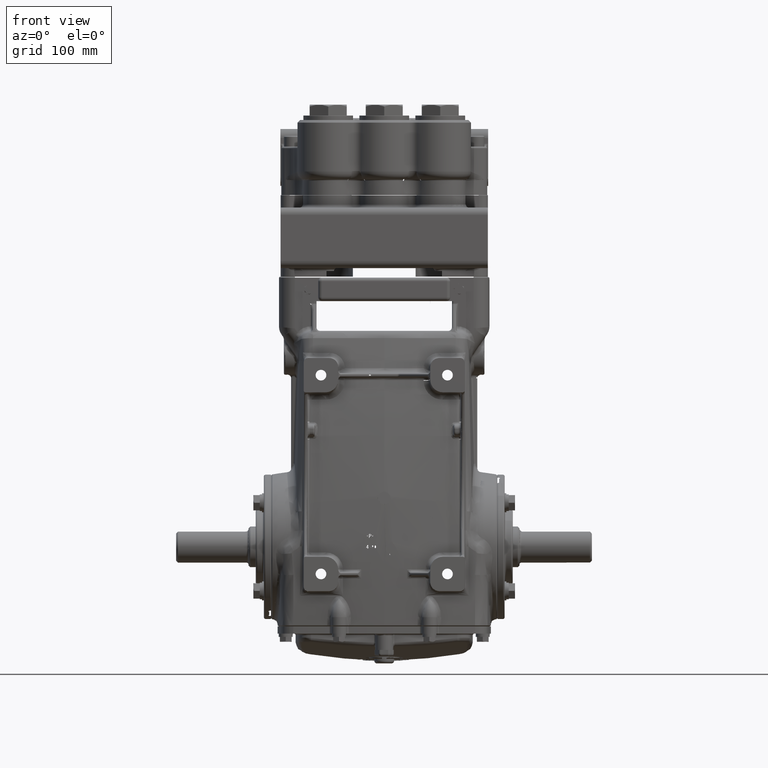
[diagram: clean part render]
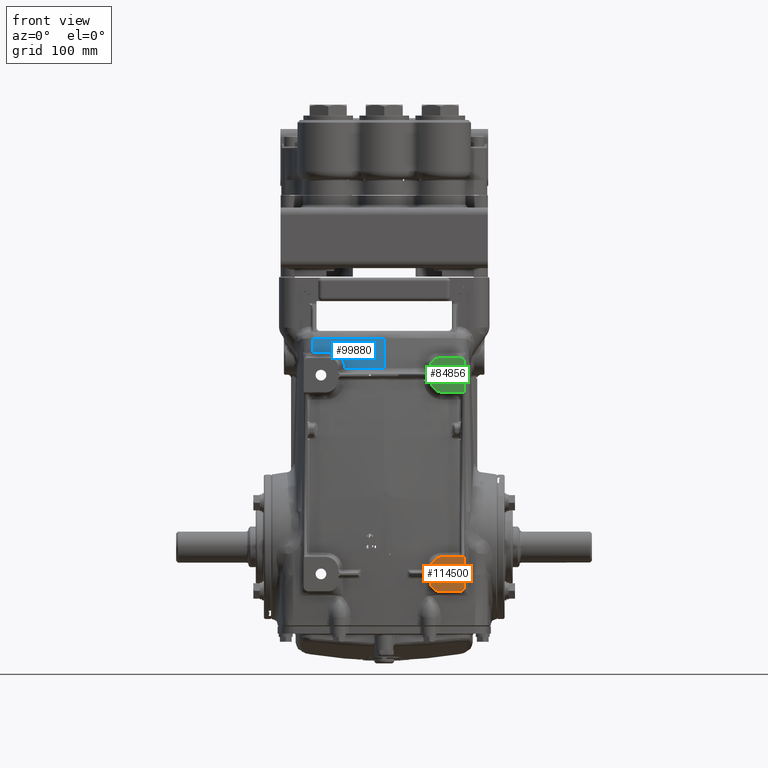
[diagram: same view with three faces highlighted in distinct colors, each labeled with its STEP entity id]
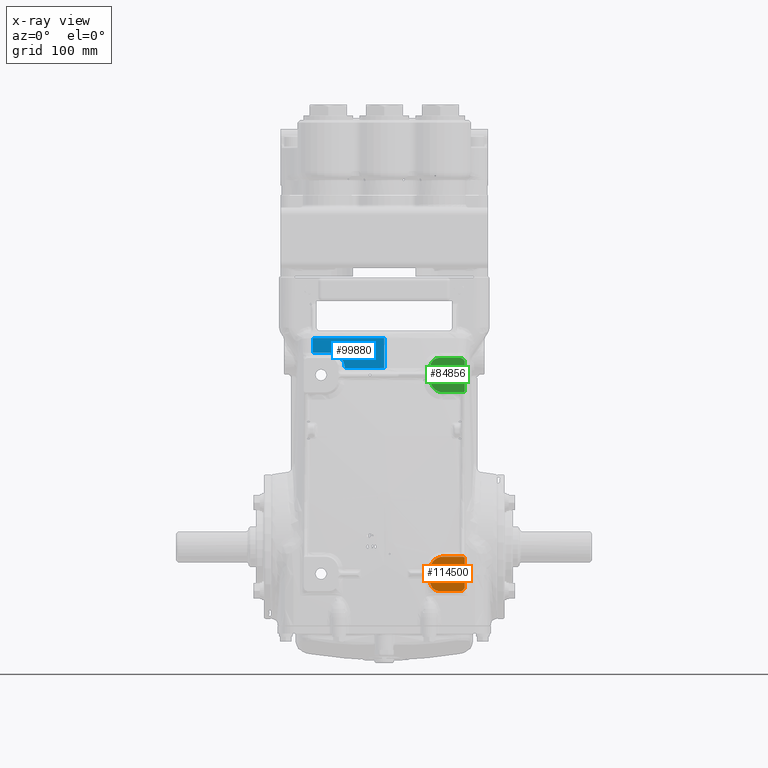
[diagram: x-ray of the same camera — body ghosted, the three highlighted faces saturated]
A machine part, front view with three faces highlighted in distinct colors.
The next image is the same camera in x-ray (body ghosted, the three faces saturated) — at least one of them is partly hidden behind the body in this view.
Their STEP definitions:

[orange] entity #114500 — the highlighted planar face has unit normal (0, -1, -0).
#957 = ORIENTED_EDGE ( 'NONE', *, *, #67158, .T. ) ;
#1473 = CARTESIAN_POINT ( 'NONE',  ( 3.496900669208785839, -4.921259842519685179, -0.4790495044432129257 ) ) ;
#1664 = EDGE_CURVE ( 'NONE', #90042, #77414, #56602, .T. ) ;
#2799 = DIRECTION ( 'NONE',  ( -1.000000000000000000, 0.0000000000000000000, -1.369518533665900065E-16 ) ) ;
#5070 = EDGE_LOOP ( 'NONE', ( #120319, #135981 ) ) ;
#5973 = CARTESIAN_POINT ( 'NONE',  ( 3.425196850393701364, -4.921259842519685179, -0.5118110236220471121 ) ) ;
#9508 = CARTESIAN_POINT ( 'NONE',  ( 2.401574803149606918, -4.921259842519685179, -1.929133858267716883 ) ) ;
#9780 = VERTEX_POINT ( 'NONE', #51452 ) ;
#12530 = DIRECTION ( 'NONE',  ( 1.826024711554533174E-16, 0.0000000000000000000, -1.000000000000000000 ) ) ;
#12553 = ORIENTED_EDGE ( 'NONE', *, *, #1664, .F. ) ;
#12852 = EDGE_CURVE ( 'NONE', #124599, #27910, #17878, .T. ) ;
#13222 = DIRECTION ( 'NONE',  ( 0.0000000000000000000, -1.000000000000000000, -0.0000000000000000000 ) ) ;
#16404 = DIRECTION ( 'NONE',  ( 0.0000000000000000000, 0.0000000000000000000, -1.000000000000000000 ) ) ;
#17878 = CIRCLE ( 'NONE', #95353, 0.1968503937007873017 ) ;
#23643 = FACE_OUTER_BOUND ( 'NONE', #130486, .T. ) ;
#23857 = CARTESIAN_POINT ( 'NONE',  ( 2.755905511811550745, -4.921259842519685179, -0.9481299212598436332 ) ) ;
#24281 = DIRECTION ( 'NONE',  ( 0.0000000000000000000, 0.0000000000000000000, -1.000000000000000000 ) ) ;
#24535 = CARTESIAN_POINT ( 'NONE',  ( 3.503410565396904985, -4.921259842519684291, -0.4980978938802551048 ) ) ;
#24642 = B_SPLINE_CURVE_WITH_KNOTS ( 'NONE', 3,
 ( #34959, #77218, #119467, #24535, #66803, #109055 ),
 .UNSPECIFIED., .F., .F.,
 ( 4, 2, 4 ),
 ( 3.103167691559091397E-17, 0.0003407475794177710010, 0.0006814951588355109939 ),
 .UNSPECIFIED. ) ;
#24662 = EDGE_CURVE ( 'NONE', #78970, #27910, #30423, .T. ) ;
#24960 = VERTEX_POINT ( 'NONE', #38583 ) ;
#26057 = VERTEX_POINT ( 'NONE', #37819 ) ;
#27910 = VERTEX_POINT ( 'NONE', #52524 ) ;
#27927 = CIRCLE ( 'NONE', #105385, 0.2329724409448815925 ) ;
#28263 = EDGE_CURVE ( 'NONE', #124599, #39995, #86280, .T. ) ;
#30423 = LINE ( 'NONE', #72659, #98676 ) ;
#30574 = AXIS2_PLACEMENT_3D ( 'NONE', #5973, #37888, #80163 ) ;
#30741 = VERTEX_POINT ( 'NONE', #67653 ) ;
#33629 = DIRECTION ( 'NONE',  ( 0.0000000000000000000, 0.0000000000000000000, 1.000000000000000000 ) ) ;
#34266 = DIRECTION ( 'NONE',  ( -0.0000000000000000000, 1.000000000000000000, 0.0000000000000000000 ) ) ;
#34959 = CARTESIAN_POINT ( 'NONE',  ( 3.497893122359637008, -4.921259842519685179, -0.4810763468023293021 ) ) ;
#35621 = AXIS2_PLACEMENT_3D ( 'NONE', #69058, #111317, #16404 ) ;
#37766 = AXIS2_PLACEMENT_3D ( 'NONE', #47107, #89359, #131640 ) ;
#37819 = CARTESIAN_POINT ( 'NONE',  ( 2.007874015748031926, -4.921259842519685179, -1.535433070866142113 ) ) ;
#37888 = DIRECTION ( 'NONE',  ( -0.0000000000000000000, 1.000000000000000000, -0.0000000000000000000 ) ) ;
#38583 = CARTESIAN_POINT ( 'NONE',  ( 2.007874015748031482, -4.921259842519685179, -0.9842519685039370358 ) ) ;
#39995 = VERTEX_POINT ( 'NONE', #47489 ) ;
#41544 = VECTOR ( 'NONE', #12530, 39.37007874015748143 ) ;
#42822 = EDGE_CURVE ( 'NONE', #24960, #26057, #65201, .T. ) ;
#43777 = CARTESIAN_POINT ( 'NONE',  ( 3.497893122359637008, -4.921259842519685179, -0.4810763468023293021 ) ) ;
#47107 = CARTESIAN_POINT ( 'NONE',  ( 2.401574803149606918, -4.921259842519685179, -1.535433070866142113 ) ) ;
#47489 = CARTESIAN_POINT ( 'NONE',  ( 3.503937007874016185, -4.921259842519685179, -0.5071693245324403465 ) ) ;
#49221 = CARTESIAN_POINT ( 'NONE',  ( 3.307086614173228689, -4.921259842519685179, -1.732283464566929387 ) ) ;
#49647 = EDGE_CURVE ( 'NONE', #9780, #90042, #90284, .T. ) ;
#50810 = CARTESIAN_POINT ( 'NONE',  ( 3.494823357746523751, -4.921259842519685179, -0.4750392698717546547 ) ) ;
#50826 = ORIENTED_EDGE ( 'NONE', *, *, #28263, .T. ) ;
#51452 = CARTESIAN_POINT ( 'NONE',  ( 3.425196850393701364, -4.921259842519685179, -0.4330708661417321248 ) ) ;
#51511 = ORIENTED_EDGE ( 'NONE', *, *, #12852, .F. ) ;
#52524 = CARTESIAN_POINT ( 'NONE',  ( 3.307086614173228689, -4.921259842519685179, -1.929133858267716661 ) ) ;
#53492 = EDGE_CURVE ( 'NONE', #78970, #26057, #97494, .T. ) ;
#54168 = CARTESIAN_POINT ( 'NONE',  ( 3.494823357746523751, -4.921259842519685179, -0.4750392698717546547 ) ) ;
#54933 = VECTOR ( 'NONE', #33629, 39.37007874015748143 ) ;
#55499 = LINE ( 'NONE', #97766, #119540 ) ;
#55507 = DIRECTION ( 'NONE',  ( -0.0000000000000000000, 0.0000000000000000000, -1.000000000000000000 ) ) ;
#56602 = B_SPLINE_CURVE_WITH_KNOTS ( 'NONE', 3,
 ( #54168, #96438, #1473, #43777 ),
 .UNSPECIFIED., .F., .F.,
 ( 4, 4 ),
 ( 1.734723475976807094E-18, 0.0001719451205968717167 ),
 .UNSPECIFIED. ) ;
#57714 = ORIENTED_EDGE ( 'NONE', *, *, #49647, .F. ) ;
#65201 = LINE ( 'NONE', #107458, #41544 ) ;
#65916 = PLANE ( 'NONE',  #94570 ) ;
#66428 = CARTESIAN_POINT ( 'NONE',  ( 3.503937007874016185, -4.921259842519685179, -1.732283464566929387 ) ) ;
#66803 = CARTESIAN_POINT ( 'NONE',  ( 3.503937007874016185, -4.921259842519685179, -0.5026332440857571582 ) ) ;
#67158 = EDGE_CURVE ( 'NONE', #9780, #76412, #55499, .T. ) ;
#67653 = CARTESIAN_POINT ( 'NONE',  ( 2.755905511811550745, -4.921259842519685179, -1.414074803149606874 ) ) ;
#69058 = CARTESIAN_POINT ( 'NONE',  ( 2.559055118110236560, -4.921259842519685179, -0.9842519685039369248 ) ) ;
#71686 = ORIENTED_EDGE ( 'NONE', *, *, #111359, .F. ) ;
#72488 = ORIENTED_EDGE ( 'NONE', *, *, #24662, .T. ) ;
#72623 = VERTEX_POINT ( 'NONE', #23857 ) ;
#72659 = CARTESIAN_POINT ( 'NONE',  ( 3.503937007874016185, -4.921259842519685179, -1.929133858267716661 ) ) ;
#76412 = VERTEX_POINT ( 'NONE', #135381 ) ;
#76532 = DIRECTION ( 'NONE',  ( 0.0000000000000000000, 0.0000000000000000000, -1.000000000000000000 ) ) ;
#76976 = CARTESIAN_POINT ( 'NONE',  ( 2.755905511811550745, -4.921259842519685179, -1.181102362204725198 ) ) ;
#77006 = CIRCLE ( 'NONE', #94710, 0.2329724409448815925 ) ;
#77218 = CARTESIAN_POINT ( 'NONE',  ( 3.499887958571422431, -4.921259842519416061, -0.4851503109285396076 ) ) ;
#77414 = VERTEX_POINT ( 'NONE', #86198 ) ;
#78970 = VERTEX_POINT ( 'NONE', #9508 ) ;
#80163 = DIRECTION ( 'NONE',  ( 0.0000000000000000000, 0.0000000000000000000, -1.000000000000000000 ) ) ;
#81810 = ORIENTED_EDGE ( 'NONE', *, *, #121786, .F. ) ;
#86198 = CARTESIAN_POINT ( 'NONE',  ( 3.497893122359637008, -4.921259842519685179, -0.4810763468023293021 ) ) ;
#86280 = LINE ( 'NONE', #128538, #54933 ) ;
#89359 = DIRECTION ( 'NONE',  ( -0.0000000000000000000, 1.000000000000000000, -0.0000000000000000000 ) ) ;
#90042 = VERTEX_POINT ( 'NONE', #50810 ) ;
#90284 = CIRCLE ( 'NONE', #30574, 0.07874015748031495954 ) ;
#91497 = DIRECTION ( 'NONE',  ( -0.0000000000000000000, 1.000000000000000000, -0.0000000000000000000 ) ) ;
#94570 = AXIS2_PLACEMENT_3D ( 'NONE', #108161, #13222, #55507 ) ;
#94710 = AXIS2_PLACEMENT_3D ( 'NONE', #76976, #119223, #24281 ) ;
#95329 = CIRCLE ( 'NONE', #35621, 0.5511811023622048555 ) ;
#95353 = AXIS2_PLACEMENT_3D ( 'NONE', #49221, #91497, #133782 ) ;
#96438 = CARTESIAN_POINT ( 'NONE',  ( 3.495878278499195080, -4.921259842519685179, -0.4770367391260433854 ) ) ;
#97494 = CIRCLE ( 'NONE', #37766, 0.3937007874015748810 ) ;
#97766 = CARTESIAN_POINT ( 'NONE',  ( 3.503937007874016185, -4.921259842519685179, -0.4330708661417321248 ) ) ;
#98676 = VECTOR ( 'NONE', #114916, 39.37007874015748143 ) ;
#102251 = EDGE_CURVE ( 'NONE', #30741, #72623, #27927, .T. ) ;
#103012 = ORIENTED_EDGE ( 'NONE', *, *, #42822, .T. ) ;
#104730 = EDGE_CURVE ( 'NONE', #72623, #30741, #77006, .T. ) ;
#105385 = AXIS2_PLACEMENT_3D ( 'NONE', #129168, #34266, #76532 ) ;
#107458 = CARTESIAN_POINT ( 'NONE',  ( 2.007874015748031482, -4.921259842519685179, -0.4330708661417323468 ) ) ;
#108161 = CARTESIAN_POINT ( 'NONE',  ( 3.503937007874016185, -4.921259842519685179, -0.4330708661417321248 ) ) ;
#109055 = CARTESIAN_POINT ( 'NONE',  ( 3.503937007874016185, -4.921259842519685179, -0.5071693245324403465 ) ) ;
#111317 = DIRECTION ( 'NONE',  ( -0.0000000000000000000, 1.000000000000000000, -0.0000000000000000000 ) ) ;
#111359 = EDGE_CURVE ( 'NONE', #77414, #39995, #24642, .T. ) ;
#114500 = ADVANCED_FACE ( 'NONE', ( #118583, #23643 ), #65916, .T. ) ;
#114916 = DIRECTION ( 'NONE',  ( 1.000000000000000000, 0.0000000000000000000, 1.826024711554534160E-16 ) ) ;
#118583 = FACE_BOUND ( 'NONE', #5070, .T. ) ;
#119223 = DIRECTION ( 'NONE',  ( -0.0000000000000000000, 1.000000000000000000, 0.0000000000000000000 ) ) ;
#119467 = CARTESIAN_POINT ( 'NONE',  ( 3.501382793678153860, -4.921259842519686067, -0.4893716595227328714 ) ) ;
#119540 = VECTOR ( 'NONE', #2799, 39.37007874015748143 ) ;
#120319 = ORIENTED_EDGE ( 'NONE', *, *, #102251, .T. ) ;
#121786 = EDGE_CURVE ( 'NONE', #24960, #76412, #95329, .T. ) ;
#124599 = VERTEX_POINT ( 'NONE', #66428 ) ;
#128538 = CARTESIAN_POINT ( 'NONE',  ( 3.503937007874016185, -4.921259842519685179, -0.4330708661417321248 ) ) ;
#129168 = CARTESIAN_POINT ( 'NONE',  ( 2.755905511811550745, -4.921259842519685179, -1.181102362204725198 ) ) ;
#130486 = EDGE_LOOP ( 'NONE', ( #51511, #50826, #71686, #12553, #57714, #957, #81810, #103012, #131512, #72488 ) ) ;
#131512 = ORIENTED_EDGE ( 'NONE', *, *, #53492, .F. ) ;
#131640 = DIRECTION ( 'NONE',  ( 0.0000000000000000000, 0.0000000000000000000, -1.000000000000000000 ) ) ;
#133782 = DIRECTION ( 'NONE',  ( 0.0000000000000000000, 0.0000000000000000000, -1.000000000000000000 ) ) ;
#135381 = CARTESIAN_POINT ( 'NONE',  ( 2.559055118110236560, -4.921259842519685179, -0.4330708661417322913 ) ) ;
#135981 = ORIENTED_EDGE ( 'NONE', *, *, #104730, .T. ) ;

[blue] entity #99880 — the highlighted face is a freeform B-spline surface patch.
#143 = CARTESIAN_POINT ( 'NONE',  ( -2.546897861888073766, -1.984917494112212522, 11.77165354330707103 ) ) ;
#284 = EDGE_CURVE ( 'NONE', #113172, #128885, #71770, .T. ) ;
#824 = CARTESIAN_POINT ( 'NONE',  ( -1.984980094046595811, -3.715035207772793502, -3.618486580175575451 ) ) ;
#1522 = CARTESIAN_POINT ( 'NONE',  ( -1.319367490287321365, -3.750365026217839848, -3.567180029828326049 ) ) ;
#2191 = CARTESIAN_POINT ( 'NONE',  ( -0.7358278385831683588, -3.770187928282998868, -3.515873479481110842 ) ) ;
#2873 = CARTESIAN_POINT ( 'NONE',  ( -0.2967830776188838948, -3.778554773149950918, -3.464566929133870765 ) ) ;
#3565 = CARTESIAN_POINT ( 'NONE',  ( -2.012678123579103383E-16, -3.879607779226448727, 1.666088105590245005 ) ) ;
#4877 = B_SPLINE_CURVE_WITH_KNOTS ( 'NONE', 3,
 ( #130085, #35176, #77430, #119689, #24754, #67019 ),
 .UNSPECIFIED., .F., .F.,
 ( 4, 2, 4 ),
 ( 1.157972947350115611E-16, 0.03946951906550993233, 0.07893903813101973976 ),
 .UNSPECIFIED. ) ;
#5126 = CARTESIAN_POINT ( 'NONE',  ( -2.229146687109527569, -2.725235455612707192, 8.436483552640764216 ) ) ;
#5825 = CARTESIAN_POINT ( 'NONE',  ( -1.805281419105324803, -2.810212604408580450, 8.119421022439990310 ) ) ;
#6726 = B_SPLINE_CURVE_WITH_KNOTS ( 'NONE', 3,
 ( #15569, #57835, #100086, #5126, #47444, #89710, #131984, #37077, #79329, #121579, #26643, #68897, #111154, #16244, #58514, #100772, #5825, #48123, #90380, #132643, #37732, #80010, #122252, #27316, #69571 ),
 .UNSPECIFIED., .F., .F.,
 ( 4, 2, 2, 2, 2, 2, 2, 2, 2, 1, 2, 2, 4 ),
 ( 6.938893903907228378E-18, 0.003339044877611916946, 0.005008567316417892983, 0.006678089755223868586, 0.01001713463283582066, 0.01168665707164179626, 0.01335617951044777187, 0.01669522438805978032, 0.01836474682686582011, 0.02003426926567185989, 0.02170379170447789968, 0.02337331414328393600, 0.02671235902089601211 ),
 .UNSPECIFIED. ) ;
#7131 = CARTESIAN_POINT ( 'NONE',  ( -5.198970772611560598, -3.447554298261426009, 1.666088105590245005 ) ) ;
#7819 = CARTESIAN_POINT ( 'NONE',  ( -4.868081132182981108, -2.932590719273642232, 6.788105265077332362 ) ) ;
#8071 = EDGE_LOOP ( 'NONE', ( #58386, #9096, #75601, #38495, #108648, #49882 ) ) ;
#8509 = CARTESIAN_POINT ( 'NONE',  ( -4.313968799146451261, -1.790118484102914520, 11.77165354330706748 ) ) ;
#9096 = ORIENTED_EDGE ( 'NONE', *, *, #92669, .T. ) ;
#9201 = CARTESIAN_POINT ( 'NONE',  ( -4.245122092175382278, -3.489443528654252891, -3.618486580175574119 ) ) ;
#9876 = CARTESIAN_POINT ( 'NONE',  ( -3.676320872923321215, -3.563139150954628853, -3.567180029828337151 ) ) ;
#10562 = CARTESIAN_POINT ( 'NONE',  ( -2.949326103537944554, -3.641132690136358097, -3.515873479481089525 ) ) ;
#11244 = CARTESIAN_POINT ( 'NONE',  ( -1.985770692835955309, -3.717984613656209802, -3.464566929133851225 ) ) ;
#11509 = CARTESIAN_POINT ( 'NONE',  ( -2.381094078602174591, -2.710867978495036468, 8.453832221844944428 ) ) ;
#11685 = CARTESIAN_POINT ( 'NONE',  ( -2.381094078602174591, -2.710867978495036468, 8.453832221844944428 ) ) ;
#11929 = CARTESIAN_POINT ( 'NONE',  ( -1.362097085040824274, -3.850552444245257000, 1.666088105590242563 ) ) ;
#12620 = CARTESIAN_POINT ( 'NONE',  ( -0.8167816115820991651, -3.300139625805285526, 6.788105265077268413 ) ) ;
#13287 = CARTESIAN_POINT ( 'NONE',  ( -0.3689025879196009550, -2.085018776577810318, 11.77165354330711722 ) ) ;
#13988 = CARTESIAN_POINT ( 'NONE',  ( -0.1142223676823474615, -3.776525152449977885, -3.618486580175580780 ) ) ;
#14683 = CARTESIAN_POINT ( 'NONE',  ( -1.717491946463606256, -2.873698173797204714, 7.787580130769446107 ) ) ;
#15569 = CARTESIAN_POINT ( 'NONE',  ( -2.381094078602174591, -2.710867978495036468, 8.453832221844944428 ) ) ;
#16244 = CARTESIAN_POINT ( 'NONE',  ( -1.879785341906551777, -2.786599487555536658, 8.226226331997818164 ) ) ;
#17546 = FACE_OUTER_BOUND ( 'NONE', #8071, .T. ) ;
#18224 = CARTESIAN_POINT ( 'NONE',  ( -5.106023067944211569, -3.361028495190370613, -3.567180029828339816 ) ) ;
#18925 = CARTESIAN_POINT ( 'NONE',  ( -4.679000667790254475, -3.429291444298804947, -3.515873479481089081 ) ) ;
#19604 = CARTESIAN_POINT ( 'NONE',  ( -4.243963660982920771, -3.492601257485477007, -3.464566929133851669 ) ) ;
#19953 = CARTESIAN_POINT ( 'NONE',  ( -4.867151181417769414E-16, -2.764480798053563060, 8.657853281897740061 ) ) ;
#20289 = CARTESIAN_POINT ( 'NONE',  ( -3.642609699583889693, -3.669091859143849277, 1.666088105590245894 ) ) ;
#20963 = CARTESIAN_POINT ( 'NONE',  ( -2.928843091800468201, -3.174904538743523741, 6.788105265077264860 ) ) ;
#21649 = CARTESIAN_POINT ( 'NONE',  ( -2.064830571771905099, -2.019771155656985950, 11.77165354330714919 ) ) ;
#22087 = CARTESIAN_POINT ( 'NONE',  ( -3.114984796074913742, -2.646561594118289396, 8.453931444787523120 ) ) ;
#22328 = CARTESIAN_POINT ( 'NONE',  ( -1.654884996024220678, -3.733462328889290749, -3.618486580175582557 ) ) ;
#23002 = CARTESIAN_POINT ( 'NONE',  ( -1.030857308887189960, -3.761445529092973139, -3.567180029828311394 ) ) ;
#23708 = CARTESIAN_POINT ( 'NONE',  ( -0.5255356731875537868, -3.774289311186384666, -3.515873479481118835 ) ) ;
#24391 = CARTESIAN_POINT ( 'NONE',  ( -0.1145511254997701872, -3.779527559055117170, -3.464566929133858331 ) ) ;
#24754 = CARTESIAN_POINT ( 'NONE',  ( -2.586744917221051931, -2.577009409423275610, 9.091538388316898534 ) ) ;
#26643 = CARTESIAN_POINT ( 'NONE',  ( -1.975053211250615171, -2.764580880640281624, 8.314972517134361141 ) ) ;
#27316 = CARTESIAN_POINT ( 'NONE',  ( -1.717493775462403782, -2.866097144402355301, 7.831368139716890830 ) ) ;
#28238 = CARTESIAN_POINT ( 'NONE',  ( -5.402293689715766509E-16, -2.679074810044228538, 9.091778328836998213 ) ) ;
#28641 = CARTESIAN_POINT ( 'NONE',  ( -5.097556275581013985, -3.464527348884253399, 1.666088105590245227 ) ) ;
#29330 = CARTESIAN_POINT ( 'NONE',  ( -4.616191265649623787, -2.970628326956800347, 6.788105265077308381 ) ) ;
#30020 = CARTESIAN_POINT ( 'NONE',  ( -4.128120541736747029, -1.815220094267141926, 11.77165354330706748 ) ) ;
#30707 = CARTESIAN_POINT ( 'NONE',  ( -3.976107777697345025, -3.524850135659458594, -3.618486580175578116 ) ) ;
#31401 = CARTESIAN_POINT ( 'NONE',  ( -3.368529403963386848, -3.597357692142189478, -3.567180029828322052 ) ) ;
#32086 = CARTESIAN_POINT ( 'NONE',  ( -2.527195816442180387, -3.678818915764058506, -3.515873479481128161 ) ) ;
#32768 = CARTESIAN_POINT ( 'NONE',  ( -1.655951724608115905, -3.736406295979326497, -3.464566929133859663 ) ) ;
#33441 = CARTESIAN_POINT ( 'NONE',  ( -1.076045302098542100, -3.861960237515295713, 1.666088105590266322 ) ) ;
#34043 = CARTESIAN_POINT ( 'NONE',  ( -3.114984796074913742, -2.646561594118289396, 8.453931444787523120 ) ) ;
#34119 = CARTESIAN_POINT ( 'NONE',  ( -0.5939119186073533729, -3.305025573021251439, 6.788105265077268413 ) ) ;
#34821 = CARTESIAN_POINT ( 'NONE',  ( -0.1474269072420379689, -2.086614173228348523, 11.77165354330708702 ) ) ;
#35176 = CARTESIAN_POINT ( 'NONE',  ( -0.5179728301178145866, -2.679074810044229871, 9.091778328836996437 ) ) ;
#35506 = CARTESIAN_POINT ( 'NONE',  ( -1.794796163052745170E-15, -3.776525152449977885, -3.618486580175580780 ) ) ;
#37077 = CARTESIAN_POINT ( 'NONE',  ( -2.084794139664556401, -2.744608836108300309, 8.385310182721196881 ) ) ;
#37732 = CARTESIAN_POINT ( 'NONE',  ( -1.739755304971318139, -2.842281545850872782, 7.960033192951561531 ) ) ;
#38495 = ORIENTED_EDGE ( 'NONE', *, *, #50388, .T. ) ;
#39050 = CARTESIAN_POINT ( 'NONE',  ( -5.198970772611564151, -3.344471671484953834, -3.618486580175580780 ) ) ;
#39729 = CARTESIAN_POINT ( 'NONE',  ( -4.912396093639706862, -3.392558210691264620, -3.567180029828337151 ) ) ;
#40006 = CARTESIAN_POINT ( 'NONE',  ( 4.012248683779269015E-16, -2.920600716370307826, 7.787511066166949547 ) ) ;
#40399 = CARTESIAN_POINT ( 'NONE',  ( -4.425939253456486533, -3.466301995362111477, -3.515873479481089081 ) ) ;
#41092 = CARTESIAN_POINT ( 'NONE',  ( -3.974983167599075440, -3.527993497208705698, -3.464566929133855222 ) ) ;
#41773 = CARTESIAN_POINT ( 'NONE',  ( -3.343761829193249824, -3.702043953926232422, 1.666088105590247448 ) ) ;
#42458 = CARTESIAN_POINT ( 'NONE',  ( -2.540352331839605515, -3.209458825920017411, 6.788105265077277295 ) ) ;
#43132 = CARTESIAN_POINT ( 'NONE',  ( -1.762624582997618594, -2.037648958642162000, 11.77165354330708169 ) ) ;
#43360 = VERTEX_POINT ( 'NONE', #28238 ) ;
#43823 = CARTESIAN_POINT ( 'NONE',  ( -1.318948572691698740, -3.749382796629336045, -3.618486580175567013 ) ) ;
#44425 = CARTESIAN_POINT ( 'NONE',  ( -3.102199435687712725, -2.525999220438854831, 9.091418719550144800 ) ) ;
#44500 = CARTESIAN_POINT ( 'NONE',  ( -0.7354250834936214565, -3.769197157460041581, -3.567180029828351806 ) ) ;
#45179 = CARTESIAN_POINT ( 'NONE',  ( -0.2965426792512148579, -3.777556046317388727, -3.515873479481112174 ) ) ;
#45503 = CARTESIAN_POINT ( 'NONE',  ( 4.012248683779269015E-16, -2.920600716370307826, 7.787511066166949547 ) ) ;
#45885 = CARTESIAN_POINT ( 'NONE',  ( -1.748382715945128460E-15, -3.779527559055117170, -3.464566929133858331 ) ) ;
#47444 = CARTESIAN_POINT ( 'NONE',  ( -2.207978020088283699, -2.727722115330439401, 8.431119299282199719 ) ) ;
#48123 = CARTESIAN_POINT ( 'NONE',  ( -1.785023455621191690, -2.818220702238185549, 8.081165110137138896 ) ) ;
#49411 = CARTESIAN_POINT ( 'NONE',  ( -5.198970772611564151, -3.347474078090093119, -3.464566929133858331 ) ) ;
#49567 = EDGE_CURVE ( 'NONE', #43360, #113172, #4877, .T. ) ;
#49882 = ORIENTED_EDGE ( 'NONE', *, *, #49567, .T. ) ;
#50116 = CARTESIAN_POINT ( 'NONE',  ( -4.890019231914034314, -3.498206854950665523, 1.666088105590264323 ) ) ;
#50388 = EDGE_CURVE ( 'NONE', #103614, #56304, #130334, .T. ) ;
#50403 = CARTESIAN_POINT ( 'NONE',  ( -1.717491946463606256, -2.873698173797204714, 7.787580130769446107 ) ) ;
#50802 = CARTESIAN_POINT ( 'NONE',  ( -4.351168285628191690, -3.008773466943061692, 6.788105265077287065 ) ) ;
#51481 = CARTESIAN_POINT ( 'NONE',  ( -3.862522157772006803, -1.849175605792622523, 11.77165354330707103 ) ) ;
#52170 = CARTESIAN_POINT ( 'NONE',  ( -3.676651374622727175, -3.562100398913558230, -3.618486580175578116 ) ) ;
#52851 = CARTESIAN_POINT ( 'NONE',  ( -2.949428009068976841, -3.640122913586610220, -3.567180029828330490 ) ) ;
#53526 = CARTESIAN_POINT ( 'NONE',  ( -1.985507159906168884, -3.717001478361737554, -3.515873479481092634 ) ) ;
#54210 = CARTESIAN_POINT ( 'NONE',  ( -1.320205325478566172, -3.752329485394848341, -3.464566929133844564 ) ) ;
#54889 = CARTESIAN_POINT ( 'NONE',  ( -0.7765061026274077127, -3.870255781401681805, 1.666088105590224577 ) ) ;
#55576 = CARTESIAN_POINT ( 'NONE',  ( -0.3448627511526962119, -3.309106901770244136, 6.788105265077311934 ) ) ;
#56262 = CARTESIAN_POINT ( 'NONE',  ( 5.785732909357574272E-15, -2.086614173228348523, 11.77165354330708702 ) ) ;
#56304 = VERTEX_POINT ( 'NONE', #45503 ) ;
#57264 = EDGE_CURVE ( 'NONE', #43360, #56304, #120579, .T. ) ;
#57835 = CARTESIAN_POINT ( 'NONE',  ( -2.336757383248817099, -2.714229300115074572, 8.453827090526871757 ) ) ;
#58386 = ORIENTED_EDGE ( 'NONE', *, *, #284, .T. ) ;
#58514 = CARTESIAN_POINT ( 'NONE',  ( -1.852523140015733816, -2.794281602054802693, 8.192715890282688207 ) ) ;
#59823 = CARTESIAN_POINT ( 'NONE',  ( -5.198970772611549940, -1.654560692263328470, 11.77165354330708702 ) ) ;
#60503 = CARTESIAN_POINT ( 'NONE',  ( -5.106106075712477654, -3.360013800546312712, -3.618486580175580780 ) ) ;
#61207 = CARTESIAN_POINT ( 'NONE',  ( -4.679313152378019147, -3.428244030763729633, -3.567180029828330046 ) ) ;
#61881 = CARTESIAN_POINT ( 'NONE',  ( -4.244349804713741570, -3.491548681208402449, -3.515873479481092634 ) ) ;
#62240 = CARTESIAN_POINT ( 'NONE',  ( -4.403802846105602926E-16, -2.844992522789814515, 8.223069724026359495 ) ) ;
#62567 = CARTESIAN_POINT ( 'NONE',  ( -3.675659869524509293, -3.565216655036770099, -3.464566929133855222 ) ) ;
#63248 = CARTESIAN_POINT ( 'NONE',  ( -2.939033644903691123, -3.743120121660875821, 1.666088105590233681 ) ) ;
#63920 = CARTESIAN_POINT ( 'NONE',  ( -2.038477278793255909, -3.245418434658447815, 6.788105265077341244 ) ) ;
#64362 = CARTESIAN_POINT ( 'NONE',  ( -2.870612155628077033, -2.670863976024473008, 8.453894088200442525 ) ) ;
#64601 = CARTESIAN_POINT ( 'NONE',  ( -1.445880604165337147, -2.053844315605310111, 11.77165354330705149 ) ) ;
#65291 = CARTESIAN_POINT ( 'NONE',  ( -1.030414289345902290, -3.760460090775107567, -3.618486580175552358 ) ) ;
#65980 = CARTESIAN_POINT ( 'NONE',  ( -0.5251954928620821139, -3.773294637058389966, -3.567180029828359356 ) ) ;
#66656 = CARTESIAN_POINT ( 'NONE',  ( -0.1144415395606292740, -3.778526756853404223, -3.515873479481098851 ) ) ;
#67019 = CARTESIAN_POINT ( 'NONE',  ( -3.102199435687712725, -2.525999220438854831, 9.091418719550144800 ) ) ;
#68897 = CARTESIAN_POINT ( 'NONE',  ( -1.941409070860542041, -2.771777961061129503, 8.287041430605134096 ) ) ;
#69571 = CARTESIAN_POINT ( 'NONE',  ( -1.717491946463606256, -2.873698173797204714, 7.787580130769446107 ) ) ;
#70896 = CARTESIAN_POINT ( 'NONE',  ( -5.105857052407678509, -3.363057884478486415, -3.464566929133858331 ) ) ;
#71580 = CARTESIAN_POINT ( 'NONE',  ( -4.647439724426058127, -3.535080211341400602, 1.666088105590255664 ) ) ;
#71770 = B_SPLINE_CURVE_WITH_KNOTS ( 'NONE', 3,
 ( #44425, #86705, #128961, #34043 ),
 .UNSPECIFIED., .F., .F.,
 ( 4, 4 ),
 ( 0.008235883142309732841, 0.02472020310143933919 ),
 .UNSPECIFIED. ) ;
#72272 = CARTESIAN_POINT ( 'NONE',  ( -4.166734914818805535, -3.033923275008306941, 6.788105265077285289 ) ) ;
#72948 = CARTESIAN_POINT ( 'NONE',  ( -3.576509359702647828, -1.883688221017244091, 11.77165354330708347 ) ) ;
#73188 = B_SPLINE_SURFACE_WITH_KNOTS ( 'NONE', 3, 3, ( 
 ( #59823, #102070, #7131, #49411, #91690, #133978, #39050 ),
 ( #81332, #123577, #28641, #70896, #113146, #18224, #60503 ),
 ( #102750, #7819, #50116, #92387, #134670, #39729, #82009 ),
 ( #124265, #29330, #71580, #113837, #18925, #61207, #103463 ),
 ( #8509, #50802, #93065, #135353, #40399, #82678, #124941 ),
 ( #30020, #72272, #114533, #19604, #61881, #104137, #9201 ),
 ( #51481, #93749, #136032, #41092, #83376, #125627, #30707 ),
 ( #72948, #115218, #20289, #62567, #104827, #9876, #52170 ),
 ( #94444, #136725, #41773, #84048, #126310, #31401, #73629 ),
 ( #115898, #20963, #63248, #105509, #10562, #52851, #95119 ),
 ( #143, #42458, #84738, #126992, #32086, #74317, #116588 ),
 ( #21649, #63920, #106178, #11244, #53526, #95802, #824 ),
 ( #43132, #85441, #127677, #32768, #75004, #117253, #22328 ),
 ( #64601, #106853, #11929, #54210, #96486, #1522, #43823 ),
 ( #86102, #128347, #33441, #75699, #117943, #23002, #65291 ),
 ( #107541, #12620, #54889, #97156, #2191, #44500, #86777 ),
 ( #129029, #34119, #76385, #118649, #23708, #65980, #108228 ),
 ( #13287, #55576, #97839, #2873, #45179, #87458, #129728 ),
 ( #34821, #77075, #119331, #24391, #66656, #108912, #13988 ),
 ( #56262, #98523, #3565, #45885, #88149, #130410, #35506 ) ),
 .UNSPECIFIED., .F., .F., .F.,
 ( 4, 1, 1, 1, 1, 1, 1, 1, 1, 1, 1, 1, 1, 1, 1, 1, 1, 4 ),
 ( 4, 3, 4 ),
 ( 0.6184983645669537289, 0.6416159574007272992, 0.6657670389438249403, 0.6733882092255791818, 0.6998562486935847593, 0.7066063624936469445, 0.7326942924917654310, 0.7646558554229355709, 0.7714968629568521585, 0.8200963265278307102, 0.8515849604812834039, 0.8836080370893045766, 0.8894876642136750888, 0.9233597485132005733, 0.9463962413280710972, 0.9559956992374156748, 0.9717342698643535170, 1.000000000000000000 ),
 ( 0.0000000000000000000, 1.000000000000000000, 1.010000000000000009 ),
 .UNSPECIFIED. ) ;
#73629 = CARTESIAN_POINT ( 'NONE',  ( -3.368772223323878379, -3.596331356242345567, -3.618486580175562572 ) ) ;
#74317 = CARTESIAN_POINT ( 'NONE',  ( -2.527130361141695758, -3.677824720997650232, -3.567180029828368681 ) ) ;
#75004 = CARTESIAN_POINT ( 'NONE',  ( -1.655596148413484237, -3.735424973615981248, -3.515873479481100627 ) ) ;
#75601 = ORIENTED_EDGE ( 'NONE', *, *, #80198, .T. ) ;
#75699 = CARTESIAN_POINT ( 'NONE',  ( -1.031743347969765301, -3.763416405728704728, -3.464566929133829909 ) ) ;
#76385 = CARTESIAN_POINT ( 'NONE',  ( -0.5598938860601898604, -3.874751398113876366, 1.666088105590221247 ) ) ;
#77075 = CARTESIAN_POINT ( 'NONE',  ( -0.1364683133279496474, -3.310494761505658357, 6.788105265077297723 ) ) ;
#77430 = CARTESIAN_POINT ( 'NONE',  ( -1.035652791599931177, -2.666268760892444245, 9.091742743691726858 ) ) ;
#79329 = CARTESIAN_POINT ( 'NONE',  ( -2.046650842188887154, -2.750913975050802041, 8.364646803487744364 ) ) ;
#80010 = CARTESIAN_POINT ( 'NONE',  ( -1.734460487809885487, -2.846315913459326552, 7.938824662093010076 ) ) ;
#80198 = EDGE_CURVE ( 'NONE', #116533, #103614, #6726, .T. ) ;
#81332 = CARTESIAN_POINT ( 'NONE',  ( -5.080954721927677831, -1.674312231355024050, 11.77165354330708880 ) ) ;
#81968 = B_SPLINE_CURVE_WITH_KNOTS ( 'NONE', 3,
 ( #22087, #64362, #106621, #11685 ),
 .UNSPECIFIED., .F., .F.,
 ( 4, 4 ),
 ( 8.441528768080324345E-17, 0.01871233081027083231 ),
 .UNSPECIFIED. ) ;
#82009 = CARTESIAN_POINT ( 'NONE',  ( -4.912615474637017421, -3.391522439669113709, -3.618486580175578560 ) ) ;
#82678 = CARTESIAN_POINT ( 'NONE',  ( -4.426311248321303182, -3.465248937106026439, -3.567180029828330046 ) ) ;
#83376 = CARTESIAN_POINT ( 'NONE',  ( -3.975358037631831820, -3.526945710025623626, -3.515873479481096187 ) ) ;
#84048 = CARTESIAN_POINT ( 'NONE',  ( -3.368043765242404231, -3.599410363941876412, -3.464566929133840123 ) ) ;
#84738 = CARTESIAN_POINT ( 'NONE',  ( -2.533806801791136376, -3.779232587171303059, 1.666088105590220581 ) ) ;
#85441 = CARTESIAN_POINT ( 'NONE',  ( -1.727066963534452215, -3.263477530756270450, 6.788105265077293282 ) ) ;
#86102 = CARTESIAN_POINT ( 'NONE',  ( -1.164649210356092590, -2.065893854747715253, 11.77165354330709235 ) ) ;
#86705 = CARTESIAN_POINT ( 'NONE',  ( -3.106461415957063821, -2.567359997039718067, 8.879121883100106416 ) ) ;
#86777 = CARTESIAN_POINT ( 'NONE',  ( -0.7350223284040744431, -3.768206386637084293, -3.618486580175592771 ) ) ;
#87458 = CARTESIAN_POINT ( 'NONE',  ( -0.2963022808835458211, -3.776557319484826980, -3.567180029828353582 ) ) ;
#88149 = CARTESIAN_POINT ( 'NONE',  ( -1.763853864981000631E-15, -3.778526756853404223, -3.515873479481098851 ) ) ;
#89710 = CARTESIAN_POINT ( 'NONE',  ( -2.166042279426309225, -2.733021108248313791, 8.418238033564799494 ) ) ;
#90380 = CARTESIAN_POINT ( 'NONE',  ( -1.766718703396933599, -2.826231851745670820, 8.042107208876069890 ) ) ;
#91690 = CARTESIAN_POINT ( 'NONE',  ( -5.198970772611564151, -3.346473275888379728, -3.515873479481098851 ) ) ;
#92387 = CARTESIAN_POINT ( 'NONE',  ( -4.911957331645086633, -3.394629752735565997, -3.464566929133854334 ) ) ;
#92662 = CARTESIAN_POINT ( 'NONE',  ( -1.145522889151178614, -2.904908632941802793, 7.787536089092605529 ) ) ;
#92669 = EDGE_CURVE ( 'NONE', #128885, #116533, #81968, .T. ) ;
#93065 = CARTESIAN_POINT ( 'NONE',  ( -4.388367772109931231, -3.572660879226690067, 1.666088105590245005 ) ) ;
#93749 = CARTESIAN_POINT ( 'NONE',  ( -3.900009161047697237, -3.068357695933036755, 6.788105265077287065 ) ) ;
#94444 = CARTESIAN_POINT ( 'NONE',  ( -3.295197957094937902, -1.914157087554182235, 11.77165354330705860 ) ) ;
#95115 = CARTESIAN_POINT ( 'NONE',  ( -3.114984796074913742, -2.646561594118289396, 8.453931444787523120 ) ) ;
#95119 = CARTESIAN_POINT ( 'NONE',  ( -2.949529914600009572, -3.639113137036862344, -3.618486580175571454 ) ) ;
#95802 = CARTESIAN_POINT ( 'NONE',  ( -1.985243626976382236, -3.716018343067265750, -3.567180029828334042 ) ) ;
#96486 = CARTESIAN_POINT ( 'NONE',  ( -1.319786407882943768, -3.751347255806344094, -3.515873479481085528 ) ) ;
#96566 = CARTESIAN_POINT ( 'NONE',  ( -3.102199435687712725, -2.525999220438854831, 9.091418719550144800 ) ) ;
#97156 = CARTESIAN_POINT ( 'NONE',  ( -0.7362305936727152611, -3.771178699105955712, -3.464566929133870321 ) ) ;
#97839 = CARTESIAN_POINT ( 'NONE',  ( -0.3208229143857905807, -3.878427456406158935, 1.666088105590246338 ) ) ;
#98523 = CARTESIAN_POINT ( 'NONE',  ( 2.310104062742990326E-15, -3.310494761505658357, 6.788105265077297723 ) ) ;
#99880 = ADVANCED_FACE ( 'NONE', ( #17546 ), #73188, .F. ) ;
#100086 = CARTESIAN_POINT ( 'NONE',  ( -2.293243834376326618, -2.718252907070225266, 8.449406254662800819 ) ) ;
#100772 = CARTESIAN_POINT ( 'NONE',  ( -1.816450438542274615, -2.806189754331757769, 8.138240232370684168 ) ) ;
#102070 = CARTESIAN_POINT ( 'NONE',  ( -5.198970772611556157, -2.878441280540636527, 6.788105265077297723 ) ) ;
#102750 = CARTESIAN_POINT ( 'NONE',  ( -4.846143032451925237, -1.712207013040100589, 11.77165354330713676 ) ) ;
#103463 = CARTESIAN_POINT ( 'NONE',  ( -4.679625636965782931, -3.427196617228654762, -3.618486580175571010 ) ) ;
#103614 = VERTEX_POINT ( 'NONE', #14683 ) ;
#104137 = CARTESIAN_POINT ( 'NONE',  ( -4.244735948444562368, -3.490496104931327892, -3.567180029828333154 ) ) ;
#104486 = CARTESIAN_POINT ( 'NONE',  ( 4.012248683779269015E-16, -2.920600716370307826, 7.787511066166949547 ) ) ;
#104827 = CARTESIAN_POINT ( 'NONE',  ( -3.675990371223915254, -3.564177902995699476, -3.515873479481096187 ) ) ;
#105509 = CARTESIAN_POINT ( 'NONE',  ( -2.949224198006912268, -3.642142466686105973, -3.464566929133849005 ) ) ;
#106178 = CARTESIAN_POINT ( 'NONE',  ( -2.012123985814606275, -3.816298143103390217, 1.666088105590270763 ) ) ;
#106621 = CARTESIAN_POINT ( 'NONE',  ( -2.625969466194566060, -2.692303109643867653, 8.453860562556663183 ) ) ;
#106853 = CARTESIAN_POINT ( 'NONE',  ( -1.403988844603081487, -3.279582165203542843, 6.788105265077278183 ) ) ;
#107541 = CARTESIAN_POINT ( 'NONE',  ( -0.8570571205367896184, -2.075255899652369340, 11.77165354330704972 ) ) ;
#108228 = CARTESIAN_POINT ( 'NONE',  ( -0.5248553125366105521, -3.772299962930395267, -3.618486580175600320 ) ) ;
#108648 = ORIENTED_EDGE ( 'NONE', *, *, #57264, .F. ) ;
#108912 = CARTESIAN_POINT ( 'NONE',  ( -0.1143319536214883747, -3.777525954651690832, -3.567180029828339816 ) ) ;
#111154 = CARTESIAN_POINT ( 'NONE',  ( -1.925407837394540023, -2.775437831165997071, 8.272358029971224269 ) ) ;
#113146 = CARTESIAN_POINT ( 'NONE',  ( -5.105940060175945483, -3.362043189834428514, -3.515873479481098851 ) ) ;
#113172 = VERTEX_POINT ( 'NONE', #96566 ) ;
#113837 = CARTESIAN_POINT ( 'NONE',  ( -4.678688183202489803, -3.430338857833879818, -3.464566929133848117 ) ) ;
#114533 = CARTESIAN_POINT ( 'NONE',  ( -4.205349287900864041, -3.597858885192953160, 1.666088105590243007 ) ) ;
#114877 = CARTESIAN_POINT ( 'NONE',  ( -5.402293689715766509E-16, -2.679074810044228538, 9.091778328836998213 ) ) ;
#115218 = CARTESIAN_POINT ( 'NONE',  ( -3.609559529643269205, -3.103773825358806082, 6.788105265077295059 ) ) ;
#115898 = CARTESIAN_POINT ( 'NONE',  ( -2.918652538697243948, -1.951921385269651754, 11.77165354330703373 ) ) ;
#116533 = VERTEX_POINT ( 'NONE', #11509 ) ;
#116588 = CARTESIAN_POINT ( 'NONE',  ( -2.527064905841210685, -3.676830526231241958, -3.618486580175609646 ) ) ;
#117253 = CARTESIAN_POINT ( 'NONE',  ( -1.655240572218852346, -3.734443651252635998, -3.567180029828341592 ) ) ;
#117943 = CARTESIAN_POINT ( 'NONE',  ( -1.031300328428477631, -3.762430967410839155, -3.515873479481070429 ) ) ;
#118649 = CARTESIAN_POINT ( 'NONE',  ( -0.5258758535130253486, -3.775283985314379809, -3.464566929133877871 ) ) ;
#119331 = CARTESIAN_POINT ( 'NONE',  ( -0.1255097194138603822, -3.879607779226448727, 1.666088105590245005 ) ) ;
#119689 = CARTESIAN_POINT ( 'NONE',  ( -2.070321461261600771, -2.615245076928799595, 9.091627837111053267 ) ) ;
#120579 = B_SPLINE_CURVE_WITH_KNOTS ( 'NONE', 3,
 ( #114877, #19953, #62240, #104486 ),
 .UNSPECIFIED., .F., .F.,
 ( 4, 4 ),
 ( 0.1784130165334954776, 0.2647005798011460298 ),
 .UNSPECIFIED. ) ;
#121579 = CARTESIAN_POINT ( 'NONE',  ( -1.992609798828650858, -2.761064563078308165, 8.328134096344225412 ) ) ;
#122252 = CARTESIAN_POINT ( 'NONE',  ( -1.721754618016186011, -2.858301453540835979, 7.874650734154412746 ) ) ;
#123577 = CARTESIAN_POINT ( 'NONE',  ( -5.089255498754346796, -2.896803575397898456, 6.788105265077298611 ) ) ;
#124265 = CARTESIAN_POINT ( 'NONE',  ( -4.584942806873188559, -1.751408872015680407, 11.77165354330709945 ) ) ;
#124941 = CARTESIAN_POINT ( 'NONE',  ( -4.426683243186120720, -3.464195878849941401, -3.618486580175571010 ) ) ;
#125627 = CARTESIAN_POINT ( 'NONE',  ( -3.975732907664588645, -3.525897922842541110, -3.567180029828337151 ) ) ;
#126310 = CARTESIAN_POINT ( 'NONE',  ( -3.368286584602895761, -3.598384028042032945, -3.515873479481081088 ) ) ;
#126992 = CARTESIAN_POINT ( 'NONE',  ( -2.527261271742665016, -3.679813110530466780, -3.464566929133887196 ) ) ;
#127677 = CARTESIAN_POINT ( 'NONE',  ( -1.691509344071284504, -3.834538532313858994, 1.666088105590241897 ) ) ;
#128347 = CARTESIAN_POINT ( 'NONE',  ( -1.120347256227317789, -3.291310831409765214, 6.788105265077311046 ) ) ;
#128885 = VERTEX_POINT ( 'NONE', #95115 ) ;
#128961 = CARTESIAN_POINT ( 'NONE',  ( -3.110718636491440758, -2.607548077745562409, 8.666623701415694825 ) ) ;
#129029 = CARTESIAN_POINT ( 'NONE',  ( -0.6279299511545158863, -2.080532177372107494, 11.77165354330705327 ) ) ;
#129728 = CARTESIAN_POINT ( 'NONE',  ( -0.2960618825158767842, -3.775558592652264789, -3.618486580175594991 ) ) ;
#130085 = CARTESIAN_POINT ( 'NONE',  ( -5.402293689715766509E-16, -2.679074810044228538, 9.091778328836998213 ) ) ;
#130334 = B_SPLINE_CURVE_WITH_KNOTS ( 'NONE', 3,
 ( #50403, #92662, #134942, #40006 ),
 .UNSPECIFIED., .F., .F.,
 ( 4, 4 ),
 ( 1.179611963664228824E-16, 0.04364608461855452870 ),
 .UNSPECIFIED. ) ;
#130410 = CARTESIAN_POINT ( 'NONE',  ( -1.779325014016872802E-15, -3.777525954651690832, -3.567180029828339816 ) ) ;
#131984 = CARTESIAN_POINT ( 'NONE',  ( -2.145236337075762112, -2.735841424142591460, 8.410690569322378352 ) ) ;
#132643 = CARTESIAN_POINT ( 'NONE',  ( -1.752262106536514707, -2.834253227689659482, 8.001470102143164453 ) ) ;
#133978 = CARTESIAN_POINT ( 'NONE',  ( -5.198970772611564151, -3.345472473686666781, -3.567180029828339816 ) ) ;
#134670 = CARTESIAN_POINT ( 'NONE',  ( -4.912176712642397192, -3.393593981713415086, -3.515873479481095742 ) ) ;
#134942 = CARTESIAN_POINT ( 'NONE',  ( -0.5728204626553266010, -2.920600716370309158, 7.787511066166949547 ) ) ;
#135353 = CARTESIAN_POINT ( 'NONE',  ( -4.425567258591668995, -3.467355053618196958, -3.464566929133848117 ) ) ;
#136032 = CARTESIAN_POINT ( 'NONE',  ( -3.937496164323386783, -3.632772215516931524, 1.666088105590241453 ) ) ;
#136725 = CARTESIAN_POINT ( 'NONE',  ( -3.319479893144094085, -3.135484306018467393, 6.788105265077284400 ) ) ;

[green] entity #84856 — the highlighted planar face has unit normal (0, -1, -0).
#353 = VERTEX_POINT ( 'NONE', #108839 ) ;
#913 = PLANE ( 'NONE',  #96488 ) ;
#2121 = DIRECTION ( 'NONE',  ( 0.0000000000000000000, 0.0000000000000000000, -1.000000000000000000 ) ) ;
#3048 = DIRECTION ( 'NONE',  ( 0.0000000000000000000, 0.0000000000000000000, -1.000000000000000000 ) ) ;
#4245 = CIRCLE ( 'NONE', #81744, 0.2329724409448815925 ) ;
#6483 = EDGE_CURVE ( 'NONE', #88142, #64030, #108450, .T. ) ;
#7752 = VECTOR ( 'NONE', #79028, 39.37007874015748143 ) ;
#8253 = CARTESIAN_POINT ( 'NONE',  ( 2.401574803149605586, -4.921259842519685179, 7.834645669291337100 ) ) ;
#8267 = CARTESIAN_POINT ( 'NONE',  ( 3.495878278499196412, -4.921259842519685179, 6.776249337551246477 ) ) ;
#9942 = VERTEX_POINT ( 'NONE', #110922 ) ;
#11087 = DIRECTION ( 'NONE',  ( 1.000000000000000000, -0.0000000000000000000, -0.0000000000000000000 ) ) ;
#11301 = EDGE_CURVE ( 'NONE', #64030, #110992, #18211, .T. ) ;
#14135 = CARTESIAN_POINT ( 'NONE',  ( 3.499887967183102244, -4.921259842519685179, 6.784362926941000183 ) ) ;
#15252 = LINE ( 'NONE', #57516, #53081 ) ;
#15408 = ORIENTED_EDGE ( 'NONE', *, *, #121840, .T. ) ;
#18125 = CARTESIAN_POINT ( 'NONE',  ( 2.755905511811022723, -4.921259842519685179, 7.713287401574802082 ) ) ;
#18211 = B_SPLINE_CURVE_WITH_KNOTS ( 'NONE', 3,
 ( #60970, #103216, #8267, #50561 ),
 .UNSPECIFIED., .F., .F.,
 ( 4, 4 ),
 ( 0.0003720647506712412259, 0.0005440098712684401277 ),
 .UNSPECIFIED. ) ;
#21247 = EDGE_CURVE ( 'NONE', #61821, #62536, #131668, .T. ) ;
#22699 = VECTOR ( 'NONE', #40778, 39.37007874015748143 ) ;
#22769 = CIRCLE ( 'NONE', #100206, 0.5511811023622051886 ) ;
#24542 = CARTESIAN_POINT ( 'NONE',  ( 3.503937007874016185, -4.921259842519686067, 6.801845801294198246 ) ) ;
#28862 = DIRECTION ( 'NONE',  ( -0.0000000000000000000, 1.000000000000000000, 0.0000000000000000000 ) ) ;
#28954 = AXIS2_PLACEMENT_3D ( 'NONE', #123790, #28862, #71128 ) ;
#29031 = ORIENTED_EDGE ( 'NONE', *, *, #100145, .T. ) ;
#31441 = ORIENTED_EDGE ( 'NONE', *, *, #70973, .F. ) ;
#33742 = EDGE_CURVE ( 'NONE', #110992, #58839, #56006, .T. ) ;
#36630 = CIRCLE ( 'NONE', #114046, 0.3937007874015751585 ) ;
#36770 = CARTESIAN_POINT ( 'NONE',  ( 3.503937007874015297, -4.921259842519685179, 8.228346456692912980 ) ) ;
#38470 = CARTESIAN_POINT ( 'NONE',  ( 2.755905511811022723, -4.921259842519685179, 7.480314960629920407 ) ) ;
#38803 = CARTESIAN_POINT ( 'NONE',  ( 3.425196850393701364, -4.921259842519685179, 6.811023622047246207 ) ) ;
#39546 = EDGE_CURVE ( 'NONE', #353, #62536, #36630, .T. ) ;
#40778 = DIRECTION ( 'NONE',  ( 1.826024711554537611E-16, 0.0000000000000000000, -1.000000000000000000 ) ) ;
#40889 = VECTOR ( 'NONE', #11087, 39.37007874015748143 ) ;
#43218 = CARTESIAN_POINT ( 'NONE',  ( 3.503937007874016185, -4.921259842519685179, -0.4330708661417321248 ) ) ;
#46724 = CARTESIAN_POINT ( 'NONE',  ( 2.007874015748031038, -4.921259842519685179, 7.283464566929136019 ) ) ;
#50545 = DIRECTION ( 'NONE',  ( -0.0000000000000000000, 1.000000000000000000, -0.0000000000000000000 ) ) ;
#50561 = CARTESIAN_POINT ( 'NONE',  ( 3.494823357746523307, -4.921259842519685179, 6.774251868296953027 ) ) ;
#51108 = CARTESIAN_POINT ( 'NONE',  ( 3.494823357746523307, -4.921259842519685179, 6.774251868296953027 ) ) ;
#51366 = EDGE_LOOP ( 'NONE', ( #99407, #53430, #115695, #31441, #29031, #74147, #91766, #119909, #56198, #121979 ) ) ;
#52121 = CARTESIAN_POINT ( 'NONE',  ( 3.503937007874016185, -4.921259842519685179, 6.806381922957635666 ) ) ;
#52888 = VERTEX_POINT ( 'NONE', #46724 ) ;
#53081 = VECTOR ( 'NONE', #99780, 39.37007874015748143 ) ;
#53430 = ORIENTED_EDGE ( 'NONE', *, *, #39546, .F. ) ;
#53614 = FACE_BOUND ( 'NONE', #55172, .T. ) ;
#54317 = VERTEX_POINT ( 'NONE', #18125 ) ;
#54487 = EDGE_CURVE ( 'NONE', #88142, #9942, #15252, .T. ) ;
#54819 = CARTESIAN_POINT ( 'NONE',  ( 2.559055118110235671, -4.921259842519685179, 7.283464566929136019 ) ) ;
#55172 = EDGE_LOOP ( 'NONE', ( #15408, #127306 ) ) ;
#55755 = CARTESIAN_POINT ( 'NONE',  ( 3.307086614173228689, -4.921259842519685179, 8.031496062992124152 ) ) ;
#56006 = CIRCLE ( 'NONE', #133457, 0.07874015748031502893 ) ;
#56198 = ORIENTED_EDGE ( 'NONE', *, *, #54487, .T. ) ;
#56411 = CARTESIAN_POINT ( 'NONE',  ( 3.497893122359642337, -4.921259842519685179, 6.780288945227539443 ) ) ;
#57516 = CARTESIAN_POINT ( 'NONE',  ( 3.503937007874016185, -4.921259842519685179, -0.4330708661417321248 ) ) ;
#58214 = EDGE_CURVE ( 'NONE', #353, #52888, #93437, .T. ) ;
#58839 = VERTEX_POINT ( 'NONE', #104871 ) ;
#59087 = AXIS2_PLACEMENT_3D ( 'NONE', #55755, #98014, #3048 ) ;
#60970 = CARTESIAN_POINT ( 'NONE',  ( 3.497893122359642337, -4.921259842519685179, 6.780288945227539443 ) ) ;
#61821 = VERTEX_POINT ( 'NONE', #77483 ) ;
#62536 = VERTEX_POINT ( 'NONE', #67428 ) ;
#63763 = LINE ( 'NONE', #106025, #40889 ) ;
#64030 = VERTEX_POINT ( 'NONE', #135801 ) ;
#64238 = VERTEX_POINT ( 'NONE', #86899 ) ;
#66810 = CARTESIAN_POINT ( 'NONE',  ( 3.503423845351694599, -4.921259842519686067, 6.797397074645509463 ) ) ;
#67428 = CARTESIAN_POINT ( 'NONE',  ( 2.401574803149605586, -4.921259842519685179, 8.228346456692912980 ) ) ;
#70973 = EDGE_CURVE ( 'NONE', #93884, #52888, #22769, .T. ) ;
#71128 = DIRECTION ( 'NONE',  ( 0.0000000000000000000, 0.0000000000000000000, -1.000000000000000000 ) ) ;
#74147 = ORIENTED_EDGE ( 'NONE', *, *, #33742, .F. ) ;
#77483 = CARTESIAN_POINT ( 'NONE',  ( 3.307086614173228689, -4.921259842519685179, 8.228346456692912980 ) ) ;
#79028 = DIRECTION ( 'NONE',  ( -1.000000000000000000, 0.0000000000000000000, 0.0000000000000000000 ) ) ;
#80756 = DIRECTION ( 'NONE',  ( -0.0000000000000000000, 1.000000000000000000, 0.0000000000000000000 ) ) ;
#81085 = DIRECTION ( 'NONE',  ( -0.0000000000000000000, 1.000000000000000000, -0.0000000000000000000 ) ) ;
#81744 = AXIS2_PLACEMENT_3D ( 'NONE', #38470, #80756, #123000 ) ;
#84856 = ADVANCED_FACE ( 'NONE', ( #53614, #95884 ), #913, .T. ) ;
#85526 = DIRECTION ( 'NONE',  ( 0.0000000000000000000, -1.000000000000000000, -0.0000000000000000000 ) ) ;
#86220 = EDGE_CURVE ( 'NONE', #61821, #9942, #118834, .T. ) ;
#86899 = CARTESIAN_POINT ( 'NONE',  ( 2.755905511811022723, -4.921259842519685179, 7.247342519685038731 ) ) ;
#88142 = VERTEX_POINT ( 'NONE', #52121 ) ;
#88709 = CIRCLE ( 'NONE', #28954, 0.2329724409448815925 ) ;
#91766 = ORIENTED_EDGE ( 'NONE', *, *, #11301, .F. ) ;
#92802 = DIRECTION ( 'NONE',  ( 0.0000000000000000000, 0.0000000000000000000, -1.000000000000000000 ) ) ;
#93437 = LINE ( 'NONE', #135716, #22699 ) ;
#93884 = VERTEX_POINT ( 'NONE', #121033 ) ;
#95884 = FACE_OUTER_BOUND ( 'NONE', #51366, .T. ) ;
#96488 = AXIS2_PLACEMENT_3D ( 'NONE', #43218, #85526, #127769 ) ;
#97086 = DIRECTION ( 'NONE',  ( -0.0000000000000000000, 1.000000000000000000, -0.0000000000000000000 ) ) ;
#98014 = DIRECTION ( 'NONE',  ( -0.0000000000000000000, 1.000000000000000000, -0.0000000000000000000 ) ) ;
#99407 = ORIENTED_EDGE ( 'NONE', *, *, #21247, .T. ) ;
#99780 = DIRECTION ( 'NONE',  ( 0.0000000000000000000, 0.0000000000000000000, 1.000000000000000000 ) ) ;
#100145 = EDGE_CURVE ( 'NONE', #93884, #58839, #63763, .T. ) ;
#100206 = AXIS2_PLACEMENT_3D ( 'NONE', #54819, #97086, #2121 ) ;
#103216 = CARTESIAN_POINT ( 'NONE',  ( 3.496900669208788504, -4.921259842519685179, 6.778262102868417571 ) ) ;
#104871 = CARTESIAN_POINT ( 'NONE',  ( 3.425196850393701364, -4.921259842519685179, 6.732283464566930498 ) ) ;
#106025 = CARTESIAN_POINT ( 'NONE',  ( 3.503937007874015297, -4.921259842519685179, 6.732283464566930498 ) ) ;
#106655 = EDGE_CURVE ( 'NONE', #54317, #64238, #4245, .T. ) ;
#108450 = B_SPLINE_CURVE_WITH_KNOTS ( 'NONE', 3,
 ( #119475, #24542, #66810, #109064, #14135, #56411 ),
 .UNSPECIFIED., .F., .F.,
 ( 4, 2, 4 ),
 ( 2.775557561562891351E-17, 0.0003407462270329130924, 0.0006814924540657984293 ),
 .UNSPECIFIED. ) ;
#108839 = CARTESIAN_POINT ( 'NONE',  ( 2.007874015748031038, -4.921259842519685179, 7.834645669291337100 ) ) ;
#109064 = CARTESIAN_POINT ( 'NONE',  ( 3.501408956378069703, -4.921259842519684291, 6.788667980406705382 ) ) ;
#110922 = CARTESIAN_POINT ( 'NONE',  ( 3.503937007874016185, -4.921259842519685179, 8.031496062992124152 ) ) ;
#110992 = VERTEX_POINT ( 'NONE', #51108 ) ;
#114046 = AXIS2_PLACEMENT_3D ( 'NONE', #8253, #50545, #92802 ) ;
#115695 = ORIENTED_EDGE ( 'NONE', *, *, #58214, .T. ) ;
#118834 = CIRCLE ( 'NONE', #59087, 0.1968503937007875793 ) ;
#119475 = CARTESIAN_POINT ( 'NONE',  ( 3.503937007874016185, -4.921259842519685179, 6.806381922957635666 ) ) ;
#119909 = ORIENTED_EDGE ( 'NONE', *, *, #6483, .F. ) ;
#121033 = CARTESIAN_POINT ( 'NONE',  ( 2.559055118110235671, -4.921259842519685179, 6.732283464566930498 ) ) ;
#121840 = EDGE_CURVE ( 'NONE', #64238, #54317, #88709, .T. ) ;
#121979 = ORIENTED_EDGE ( 'NONE', *, *, #86220, .F. ) ;
#123000 = DIRECTION ( 'NONE',  ( 0.0000000000000000000, 0.0000000000000000000, -1.000000000000000000 ) ) ;
#123319 = DIRECTION ( 'NONE',  ( 0.0000000000000000000, 0.0000000000000000000, -1.000000000000000000 ) ) ;
#123790 = CARTESIAN_POINT ( 'NONE',  ( 2.755905511811022723, -4.921259842519685179, 7.480314960629920407 ) ) ;
#127306 = ORIENTED_EDGE ( 'NONE', *, *, #106655, .T. ) ;
#127769 = DIRECTION ( 'NONE',  ( -0.0000000000000000000, 0.0000000000000000000, -1.000000000000000000 ) ) ;
#131668 = LINE ( 'NONE', #36770, #7752 ) ;
#133457 = AXIS2_PLACEMENT_3D ( 'NONE', #38803, #81085, #123319 ) ;
#135716 = CARTESIAN_POINT ( 'NONE',  ( 2.007874015748031038, -4.921259842519685179, 8.228346456692912980 ) ) ;
#135801 = CARTESIAN_POINT ( 'NONE',  ( 3.497893122359642337, -4.921259842519685179, 6.780288945227539443 ) ) ;